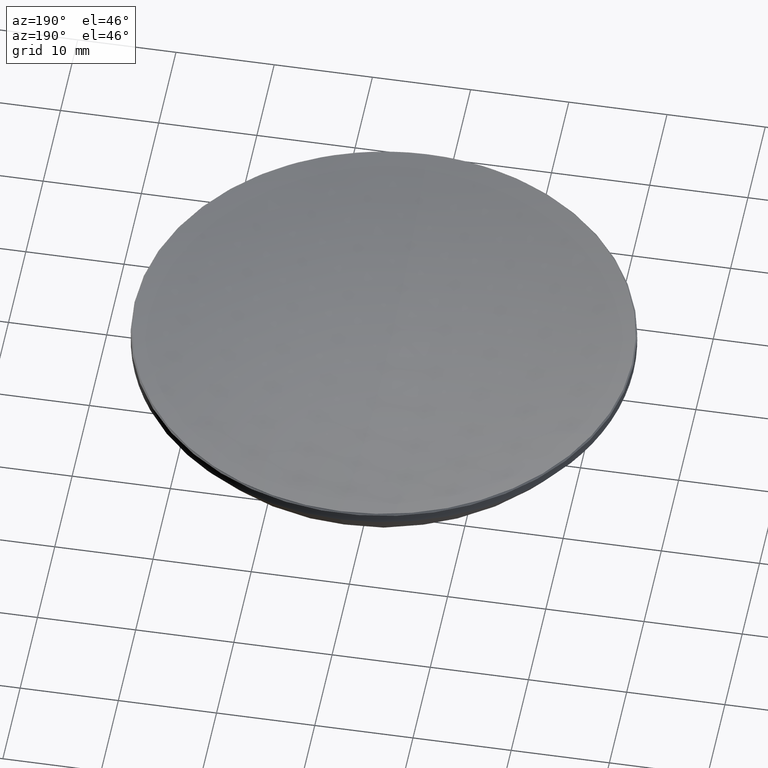
[diagram: clean part render]
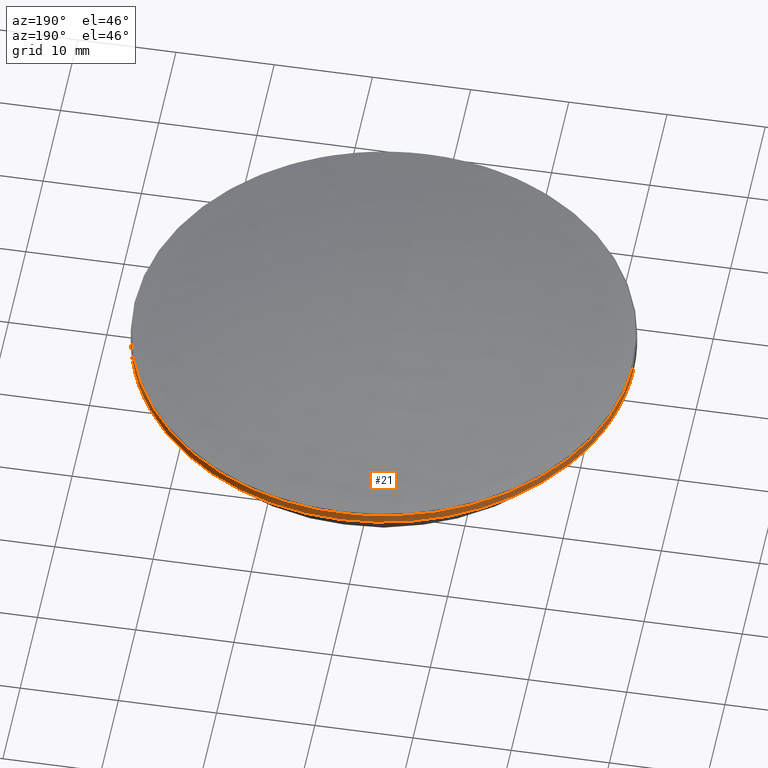
[diagram: same view with one face highlighted and labeled with its STEP entity id]
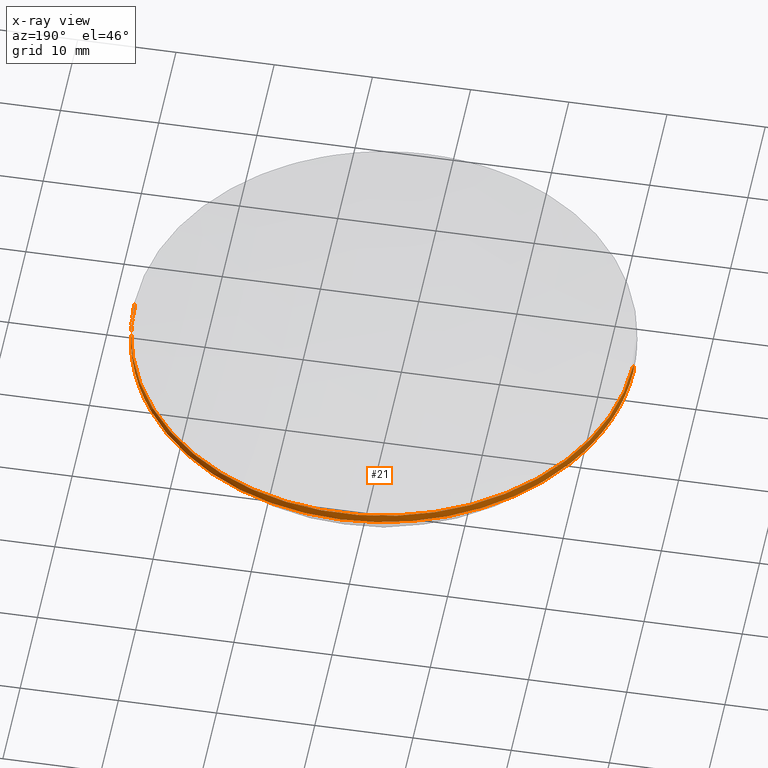
[diagram: x-ray of the same camera — body ghosted, the highlighted face saturated]
A machine part, auxiliary view. The second image highlights one B-rep face of the part: STEP entity #21.
The next image is the same camera in x-ray: the body ghosted, the highlighted face saturated — about 0% of this face is hidden behind the body in this view.
In plain terms, the highlighted cylindrical surface (partial cylindrical patch) has radius 25.4 mm, axis along (-0, -0, -1).
Its self-contained STEP definition (entity closure, byte-faithful):
#1 = ORIENTED_EDGE ( 'NONE', *, *, #55, .T. ) ;
#8 = LINE ( 'NONE', #47, #49 ) ;
#21 = ADVANCED_FACE ( 'NONE', ( #241 ), #46, .T. ) ;
#29 = DIRECTION ( 'NONE',  ( 1.000000000000000000, 0.000000000000000000, 0.000000000000000000 ) ) ;
#31 = DIRECTION ( 'NONE',  ( 1.000000000000000000, 0.000000000000000000, 0.000000000000000000 ) ) ;
#38 = ORIENTED_EDGE ( 'NONE', *, *, #199, .F. ) ;
#40 = DIRECTION ( 'NONE',  ( -1.000000000000000000, 0.000000000000000000, 0.000000000000000000 ) ) ;
#46 = CYLINDRICAL_SURFACE ( 'NONE', #268, 25.39999999999999858 ) ;
#47 = CARTESIAN_POINT ( 'NONE',  ( -25.39999999999999858, 0.000000000000000000, 20.00000000000000000 ) ) ;
#49 = VECTOR ( 'NONE', #71, 1000.000000000000000 ) ;
#55 = EDGE_CURVE ( 'NONE', #113, #210, #140, .T. ) ;
#58 = CIRCLE ( 'NONE', #215, 25.39999999999999503 ) ;
#60 = CARTESIAN_POINT ( 'NONE',  ( 0.000000000000000000, 0.000000000000000000, 20.00000000000000000 ) ) ;
#66 = CARTESIAN_POINT ( 'NONE',  ( -25.39999999999999858, 0.000000000000000000, 16.90000000000001279 ) ) ;
#69 = CARTESIAN_POINT ( 'NONE',  ( 0.000000000000000000, 0.000000000000000000, 16.90000000000001279 ) ) ;
#71 = DIRECTION ( 'NONE',  ( -0.000000000000000000, -0.000000000000000000, -1.000000000000000000 ) ) ;
#73 = DIRECTION ( 'NONE',  ( 0.000000000000000000, 0.000000000000000000, -1.000000000000000000 ) ) ;
#79 = VECTOR ( 'NONE', #103, 1000.000000000000000 ) ;
#89 = CARTESIAN_POINT ( 'NONE',  ( 0.000000000000000000, 25.39999999999999503, 16.00000000000000000 ) ) ;
#92 = DIRECTION ( 'NONE',  ( -0.000000000000000000, -0.000000000000000000, 1.000000000000000000 ) ) ;
#95 = VERTEX_POINT ( 'NONE', #89 ) ;
#97 = VERTEX_POINT ( 'NONE', #66 ) ;
#101 = AXIS2_PLACEMENT_3D ( 'NONE', #69, #73, #31 ) ;
#103 = DIRECTION ( 'NONE',  ( -0.000000000000000000, -0.000000000000000000, -1.000000000000000000 ) ) ;
#113 = VERTEX_POINT ( 'NONE', #203 ) ;
#119 = CARTESIAN_POINT ( 'NONE',  ( 25.39999999999999858, 3.110602869834276865E-15, 20.00000000000000000 ) ) ;
#120 = CARTESIAN_POINT ( 'NONE',  ( 0.000000000000000000, 0.000000000000000000, 16.00000000000000000 ) ) ;
#126 = CARTESIAN_POINT ( 'NONE',  ( 0.000000000000000000, 0.000000000000000000, 16.00000000000000000 ) ) ;
#134 = CIRCLE ( 'NONE', #101, 25.39999999999999858 ) ;
#139 = ORIENTED_EDGE ( 'NONE', *, *, #229, .T. ) ;
#140 = LINE ( 'NONE', #119, #79 ) ;
#149 = EDGE_CURVE ( 'NONE', #97, #113, #134, .T. ) ;
#153 = DIRECTION ( 'NONE',  ( 1.000000000000000000, 0.000000000000000000, 0.000000000000000000 ) ) ;
#157 = EDGE_CURVE ( 'NONE', #210, #95, #58, .T. ) ;
#167 = EDGE_LOOP ( 'NONE', ( #211, #1, #257, #139, #38 ) ) ;
#199 = EDGE_CURVE ( 'NONE', #97, #261, #8, .T. ) ;
#203 = CARTESIAN_POINT ( 'NONE',  ( 25.39999999999999858, 3.110602869834276865E-15, 16.90000000000001279 ) ) ;
#210 = VERTEX_POINT ( 'NONE', #230 ) ;
#211 = ORIENTED_EDGE ( 'NONE', *, *, #149, .T. ) ;
#215 = AXIS2_PLACEMENT_3D ( 'NONE', #120, #92, #153 ) ;
#216 = CIRCLE ( 'NONE', #231, 25.39999999999999503 ) ;
#227 = DIRECTION ( 'NONE',  ( -0.000000000000000000, -0.000000000000000000, 1.000000000000000000 ) ) ;
#229 = EDGE_CURVE ( 'NONE', #95, #261, #216, .T. ) ;
#230 = CARTESIAN_POINT ( 'NONE',  ( 25.39999999999999503, 3.110602869834276471E-15, 16.00000000000000000 ) ) ;
#231 = AXIS2_PLACEMENT_3D ( 'NONE', #126, #227, #29 ) ;
#236 = DIRECTION ( 'NONE',  ( -0.000000000000000000, -0.000000000000000000, -1.000000000000000000 ) ) ;
#241 = FACE_OUTER_BOUND ( 'NONE', #167, .T. ) ;
#243 = CARTESIAN_POINT ( 'NONE',  ( -25.39999999999999503, 0.000000000000000000, 16.00000000000000000 ) ) ;
#257 = ORIENTED_EDGE ( 'NONE', *, *, #157, .T. ) ;
#261 = VERTEX_POINT ( 'NONE', #243 ) ;
#268 = AXIS2_PLACEMENT_3D ( 'NONE', #60, #236, #40 ) ;